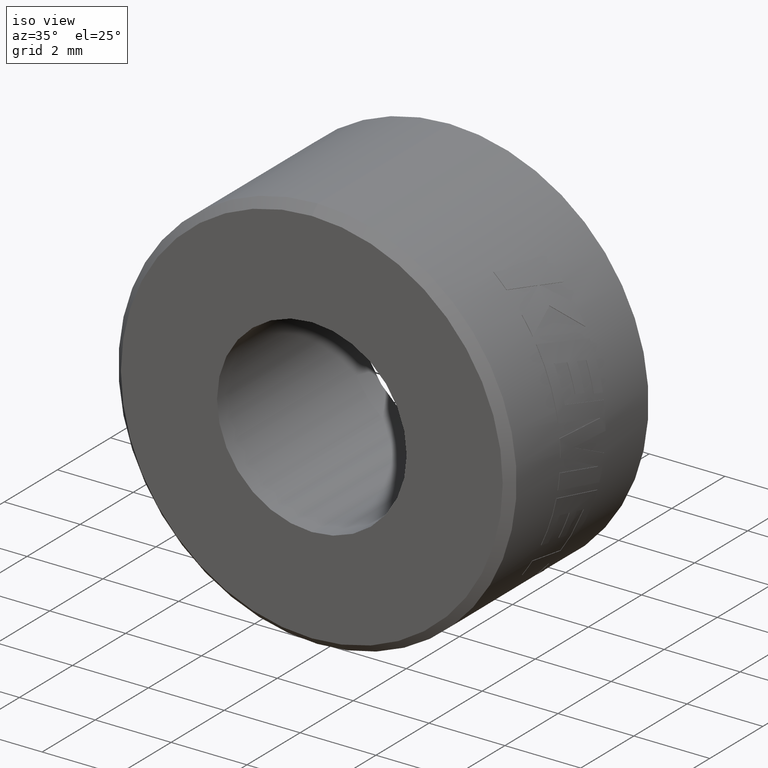
[diagram: clean part render]
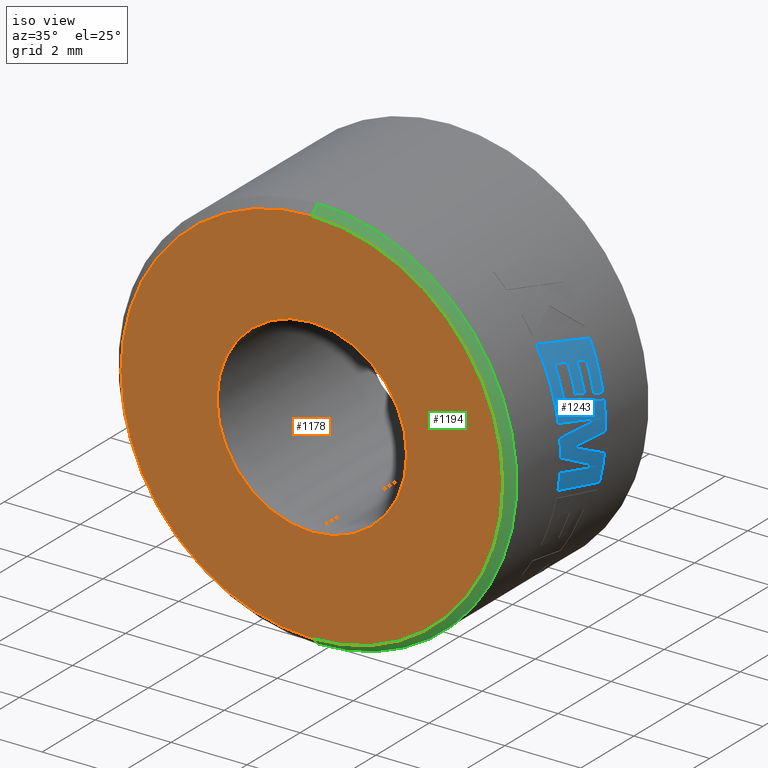
[diagram: same view with three faces highlighted in distinct colors, each labeled with its STEP entity id]
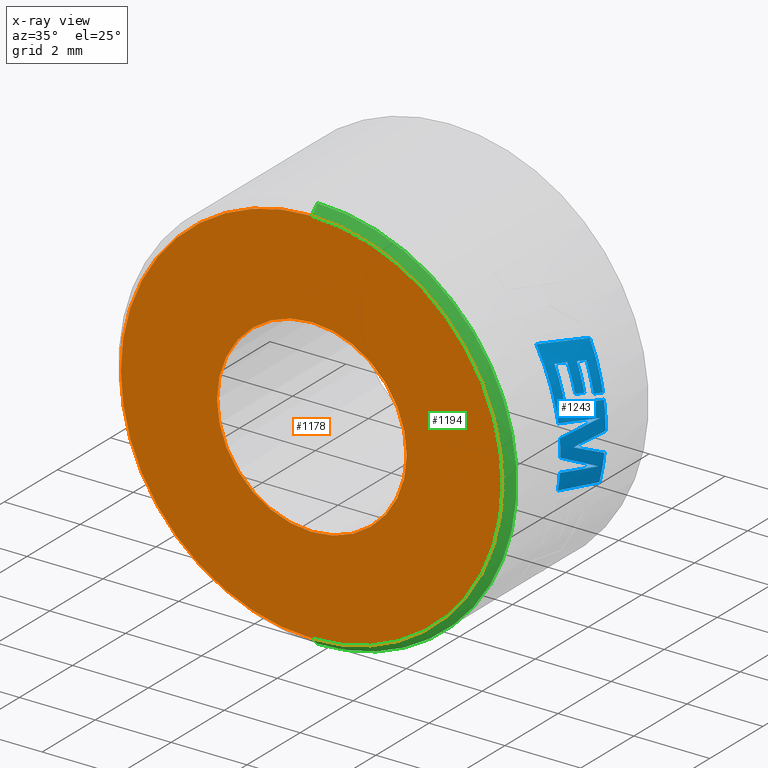
[diagram: x-ray of the same camera — body ghosted, the three highlighted faces saturated]
A machine part, iso view with three faces highlighted in distinct colors.
The next image is the same camera in x-ray (body ghosted, the three faces saturated) — at least one of them is partly hidden behind the body in this view.
Their STEP definitions:

[orange] entity #1178 — the highlighted planar face has unit normal (0, 1, 0).
#43 = VERTEX_POINT ( 'NONE', #820 ) ;
#164 = AXIS2_PLACEMENT_3D ( 'NONE', #2397, #2243, #1094 ) ;
#195 = CARTESIAN_POINT ( 'NONE',  ( 6.296950144195812582E-16, -2.700000000000000178, -5.033699999999991626 ) ) ;
#207 = EDGE_CURVE ( 'NONE', #781, #1289, #2261, .T. ) ;
#315 = AXIS2_PLACEMENT_3D ( 'NONE', #1111, #1700, #1286 ) ;
#324 = CARTESIAN_POINT ( 'NONE',  ( 0.000000000000000000, -2.700000000000000178, 0.000000000000000000 ) ) ;
#363 = EDGE_LOOP ( 'NONE', ( #743, #1209 ) ) ;
#653 = CARTESIAN_POINT ( 'NONE',  ( 0.000000000000000000, -2.700000000000000178, 0.000000000000000000 ) ) ;
#661 = VERTEX_POINT ( 'NONE', #2460 ) ;
#743 = ORIENTED_EDGE ( 'NONE', *, *, #919, .T. ) ;
#781 = VERTEX_POINT ( 'NONE', #1391 ) ;
#793 = CIRCLE ( 'NONE', #2035, 2.500000000000000000 ) ;
#820 = CARTESIAN_POINT ( 'NONE',  ( 0.000000000000000000, -2.700000000000000178, 2.500000000000000000 ) ) ;
#821 = FACE_BOUND ( 'NONE', #363, .T. ) ;
#865 = FACE_OUTER_BOUND ( 'NONE', #888, .T. ) ;
#888 = EDGE_LOOP ( 'NONE', ( #2458, #1399 ) ) ;
#919 = EDGE_CURVE ( 'NONE', #43, #661, #1978, .T. ) ;
#946 = DIRECTION ( 'NONE',  ( -0.000000000000000000, -1.000000000000000000, -0.000000000000000000 ) ) ;
#1094 = DIRECTION ( 'NONE',  ( 0.000000000000000000, 0.000000000000000000, 1.000000000000000000 ) ) ;
#1111 = CARTESIAN_POINT ( 'NONE',  ( 0.000000000000000000, -2.700000000000000178, 0.000000000000000000 ) ) ;
#1132 = DIRECTION ( 'NONE',  ( 0.000000000000000000, 0.000000000000000000, 1.000000000000000000 ) ) ;
#1152 = AXIS2_PLACEMENT_3D ( 'NONE', #1523, #946, #1132 ) ;
#1178 = ADVANCED_FACE ( 'NONE', ( #865, #821 ), #1401, .F. ) ;
#1189 = DIRECTION ( 'NONE',  ( 0.000000000000000000, 0.000000000000000000, 1.000000000000000000 ) ) ;
#1209 = ORIENTED_EDGE ( 'NONE', *, *, #1570, .T. ) ;
#1240 = CIRCLE ( 'NONE', #1152, 5.033699999999991626 ) ;
#1286 = DIRECTION ( 'NONE',  ( 0.000000000000000000, 0.000000000000000000, 1.000000000000000000 ) ) ;
#1289 = VERTEX_POINT ( 'NONE', #195 ) ;
#1335 = EDGE_CURVE ( 'NONE', #1289, #781, #1240, .T. ) ;
#1391 = CARTESIAN_POINT ( 'NONE',  ( 0.000000000000000000, -2.700000000000000178, 5.033699999999991626 ) ) ;
#1399 = ORIENTED_EDGE ( 'NONE', *, *, #1335, .T. ) ;
#1401 = PLANE ( 'NONE',  #1833 ) ;
#1481 = DIRECTION ( 'NONE',  ( 0.000000000000000000, 1.000000000000000000, 0.000000000000000000 ) ) ;
#1523 = CARTESIAN_POINT ( 'NONE',  ( 0.000000000000000000, -2.700000000000000178, 0.000000000000000000 ) ) ;
#1570 = EDGE_CURVE ( 'NONE', #661, #43, #793, .T. ) ;
#1700 = DIRECTION ( 'NONE',  ( 0.000000000000000000, 1.000000000000000000, 0.000000000000000000 ) ) ;
#1833 = AXIS2_PLACEMENT_3D ( 'NONE', #324, #1481, #2220 ) ;
#1978 = CIRCLE ( 'NONE', #315, 2.500000000000000000 ) ;
#2035 = AXIS2_PLACEMENT_3D ( 'NONE', #653, #2146, #1189 ) ;
#2146 = DIRECTION ( 'NONE',  ( 0.000000000000000000, 1.000000000000000000, 0.000000000000000000 ) ) ;
#2220 = DIRECTION ( 'NONE',  ( 0.000000000000000000, -0.000000000000000000, 1.000000000000000000 ) ) ;
#2243 = DIRECTION ( 'NONE',  ( -0.000000000000000000, -1.000000000000000000, -0.000000000000000000 ) ) ;
#2261 = CIRCLE ( 'NONE', #164, 5.033699999999991626 ) ;
#2397 = CARTESIAN_POINT ( 'NONE',  ( 0.000000000000000000, -2.700000000000000178, 0.000000000000000000 ) ) ;
#2458 = ORIENTED_EDGE ( 'NONE', *, *, #207, .T. ) ;
#2460 = CARTESIAN_POINT ( 'NONE',  ( 3.061616997868382648E-16, -2.700000000000000178, -2.500000000000000000 ) ) ;

[blue] entity #1243 — the highlighted cylindrical surface (partial cylindrical patch) has radius 5.26 mm, axis along (0, 1, 0).
#16 = B_SPLINE_CURVE_WITH_KNOTS ( 'NONE', 3,
 ( #1370, #2128, #1181, #1950 ),
 .UNSPECIFIED., .F., .F.,
 ( 4, 4 ),
 ( 0.000000000000000000, 1.000000000000000000 ),
 .UNSPECIFIED. ) ;
#25 = VERTEX_POINT ( 'NONE', #402 ) ;
#30 = B_SPLINE_CURVE_WITH_KNOTS ( 'NONE', 3,
 ( #670, #70, #1438, #871 ),
 .UNSPECIFIED., .F., .F.,
 ( 4, 4 ),
 ( 0.000000000000000000, 1.000000000000000000 ),
 .UNSPECIFIED. ) ;
#33 = DIRECTION ( 'NONE',  ( 0.000000000000000000, 1.000000000000000000, 0.000000000000000000 ) ) ;
#62 = EDGE_CURVE ( 'NONE', #1142, #304, #1568, .T. ) ;
#66 = EDGE_CURVE ( 'NONE', #1546, #1848, #1840, .T. ) ;
#70 = CARTESIAN_POINT ( 'NONE',  ( 5.168846142998578586, -0.2839695298731073070, -0.9885895622361751123 ) ) ;
#73 = CARTESIAN_POINT ( 'NONE',  ( 0.000000000000000000, -0.1045749714777438055, 0.000000000000000000 ) ) ;
#86 = DIRECTION ( 'NONE',  ( 0.000000000000000000, 0.000000000000000000, 1.000000000000000000 ) ) ;
#103 = ORIENTED_EDGE ( 'NONE', *, *, #2262, .T. ) ;
#129 = CARTESIAN_POINT ( 'NONE',  ( 5.128122207793435194, -0.1045749714777446798, 1.170454023845352909 ) ) ;
#136 = CARTESIAN_POINT ( 'NONE',  ( 4.978179115848135439, 0.5263146279889918677, 1.698626707235426414 ) ) ;
#156 = B_SPLINE_CURVE_WITH_KNOTS ( 'NONE', 3,
 ( #2101, #373, #551, #1119 ),
 .UNSPECIFIED., .F., .F.,
 ( 4, 4 ),
 ( 0.000000000000000000, 1.000000000000000000 ),
 .UNSPECIFIED. ) ;
#172 = EDGE_CURVE ( 'NONE', #1142, #2013, #1588, .T. ) ;
#208 = CARTESIAN_POINT ( 'NONE',  ( 4.916388550604661845, -0.1045749714777438055, 1.869952838839361808 ) ) ;
#212 = DIRECTION ( 'NONE',  ( 0.000000000000000000, 0.000000000000000000, 1.000000000000000000 ) ) ;
#217 = CARTESIAN_POINT ( 'NONE',  ( 4.625383235064487231, -0.8510120597978311219, 2.504681602276898289 ) ) ;
#223 = AXIS2_PLACEMENT_3D ( 'NONE', #2049, #1256, #290 ) ;
#239 = ORIENTED_EDGE ( 'NONE', *, *, #1366, .T. ) ;
#244 = EDGE_CURVE ( 'NONE', #1966, #1491, #945, .T. ) ;
#250 = CARTESIAN_POINT ( 'NONE',  ( 5.249096897691684305, 0.6634571195694937140, 0.3384992742141856858 ) ) ;
#258 = CARTESIAN_POINT ( 'NONE',  ( 0.000000000000000000, -0.5273715039358661816, 0.000000000000000000 ) ) ;
#267 = ORIENTED_EDGE ( 'NONE', *, *, #244, .T. ) ;
#272 = AXIS2_PLACEMENT_3D ( 'NONE', #556, #1714, #212 ) ;
#273 = VERTEX_POINT ( 'NONE', #2291 ) ;
#290 = DIRECTION ( 'NONE',  ( 0.000000000000000000, 0.000000000000000000, 1.000000000000000000 ) ) ;
#298 = B_SPLINE_CURVE_WITH_KNOTS ( 'NONE', 3,
 ( #685, #1406, #1421, #2136 ),
 .UNSPECIFIED., .F., .F.,
 ( 4, 4 ),
 ( 0.000000000000000000, 1.000000000000000000 ),
 .UNSPECIFIED. ) ;
#304 = VERTEX_POINT ( 'NONE', #1924 ) ;
#306 = CYLINDRICAL_SURFACE ( 'NONE', #1913, 5.259999999999999787 ) ;
#307 = EDGE_CURVE ( 'NONE', #304, #588, #156, .T. ) ;
#327 = CIRCLE ( 'NONE', #832, 5.259999999999999787 ) ;
#373 = CARTESIAN_POINT ( 'NONE',  ( 5.260037970248488293, 0.03991059201449915356, 0.008826259827437569344 ) ) ;
#400 = DIRECTION ( 'NONE',  ( 0.000000000000000000, 0.000000000000000000, 1.000000000000000000 ) ) ;
#402 = CARTESIAN_POINT ( 'NONE',  ( 4.838492606262263962, 0.8501155299763391016, 2.063150333627048028 ) ) ;
#431 = CIRCLE ( 'NONE', #1581, 5.259999999999999787 ) ;
#433 = DIRECTION ( 'NONE',  ( 0.000000000000000000, 1.000000000000000000, 0.000000000000000000 ) ) ;
#446 = DIRECTION ( 'NONE',  ( 0.000000000000000000, 0.000000000000000000, 1.000000000000000000 ) ) ;
#454 = VERTEX_POINT ( 'NONE', #2377 ) ;
#463 = EDGE_CURVE ( 'NONE', #1491, #1525, #1434, .T. ) ;
#464 = CARTESIAN_POINT ( 'NONE',  ( 5.244978028313505902, -0.8510120597978311219, -0.3972473820034079228 ) ) ;
#471 = VERTEX_POINT ( 'NONE', #1054 ) ;
#487 = CARTESIAN_POINT ( 'NONE',  ( 0.000000000000000000, -0.8510120597978311219, 0.000000000000000000 ) ) ;
#492 = CIRCLE ( 'NONE', #2428, 5.259999999999999787 ) ;
#493 = CARTESIAN_POINT ( 'NONE',  ( 5.233955987421861522, -0.3437579458105131103, -0.5427747408302763255 ) ) ;
#516 = ORIENTED_EDGE ( 'NONE', *, *, #1082, .T. ) ;
#518 = DIRECTION ( 'NONE',  ( 0.000000000000000000, 0.000000000000000000, 1.000000000000000000 ) ) ;
#525 = ORIENTED_EDGE ( 'NONE', *, *, #1452, .F. ) ;
#551 = CARTESIAN_POINT ( 'NONE',  ( 5.260029255140861615, 0.4450130609954194849, -0.01302253357255527162 ) ) ;
#555 = CARTESIAN_POINT ( 'NONE',  ( 5.203096163671014907, -0.8510120597978315660, 0.7716153909765909313 ) ) ;
#556 = CARTESIAN_POINT ( 'NONE',  ( 0.000000000000000000, 0.2099051652596621020, 0.000000000000000000 ) ) ;
#561 = CARTESIAN_POINT ( 'NONE',  ( 0.000000000000000000, 0.8501155299763391016, 0.000000000000000000 ) ) ;
#588 = VERTEX_POINT ( 'NONE', #1664 ) ;
#615 = CARTESIAN_POINT ( 'NONE',  ( 5.259911086689958992, -0.8510120597978315660, -0.03058365766299010052 ) ) ;
#624 = DIRECTION ( 'NONE',  ( 0.000000000000000000, 1.000000000000000000, 0.000000000000000000 ) ) ;
#627 = DIRECTION ( 'NONE',  ( 0.000000000000000000, 1.000000000000000000, 0.000000000000000000 ) ) ;
#641 = EDGE_CURVE ( 'NONE', #2286, #454, #1348, .T. ) ;
#658 = ORIENTED_EDGE ( 'NONE', *, *, #1936, .T. ) ;
#670 = CARTESIAN_POINT ( 'NONE',  ( 5.194535865394363405, -0.8510120597978315660, -0.8272829885423880203 ) ) ;
#685 = CARTESIAN_POINT ( 'NONE',  ( 5.173886018643873541, 0.5263146279889910906, 0.9478942272645407563 ) ) ;
#692 = CARTESIAN_POINT ( 'NONE',  ( 0.000000000000000000, -2.700000000000000178, 0.000000000000000000 ) ) ;
#724 = CARTESIAN_POINT ( 'NONE',  ( 5.203096163671014907, -0.8510120597978315660, 0.7716153909765909313 ) ) ;
#747 = CARTESIAN_POINT ( 'NONE',  ( 5.236224874283111674, 0.1634961681768059838, -0.5670356404159662134 ) ) ;
#754 = CIRCLE ( 'NONE', #2148, 5.259999999999999787 ) ;
#758 = CARTESIAN_POINT ( 'NONE',  ( 5.173886018643873541, 0.5263146279889910906, 0.9478942272645407563 ) ) ;
#768 = CARTESIAN_POINT ( 'NONE',  ( 4.774369102631394135, 0.2830730000516162859, 2.213532539493815676 ) ) ;
#785 = ORIENTED_EDGE ( 'NONE', *, *, #860, .T. ) ;
#799 = CARTESIAN_POINT ( 'NONE',  ( 5.250690238713263014, 0.4450130609954202066, -0.3719863102114197573 ) ) ;
#804 = ORIENTED_EDGE ( 'NONE', *, *, #1501, .T. ) ;
#809 = CARTESIAN_POINT ( 'NONE',  ( 5.261084463410955259, 0.03991059201449975030, -0.1706225857244925426 ) ) ;
#811 = B_SPLINE_CURVE_WITH_KNOTS ( 'NONE', 3,
 ( #1661, #1461, #1652, #136 ),
 .UNSPECIFIED., .F., .F.,
 ( 4, 4 ),
 ( 0.000000000000000000, 1.000000000000000000 ),
 .UNSPECIFIED. ) ;
#818 = CARTESIAN_POINT ( 'NONE',  ( 5.128122207793435194, -0.1045749714777446798, 1.170454023845352909 ) ) ;
#832 = AXIS2_PLACEMENT_3D ( 'NONE', #1403, #433, #446 ) ;
#860 = EDGE_CURVE ( 'NONE', #2286, #1440, #811, .T. ) ;
#871 = CARTESIAN_POINT ( 'NONE',  ( 5.095053593782743917, 0.8501155299763395456, -1.306915787830855713 ) ) ;
#876 = CARTESIAN_POINT ( 'NONE',  ( 5.141222592402709068, 0.1050784530138607342, 1.111903851328099657 ) ) ;
#898 = EDGE_LOOP ( 'NONE', ( #1538, #1444, #1799, #978, #804, #525, #2298, #658, #1736, #1454, #785, #1116, #1569, #2350, #239, #1331, #516, #940, #267, #1034, #2121, #2170, #953, #103 ) ) ;
#899 = CARTESIAN_POINT ( 'NONE',  ( 5.245219228910963594, -0.3461890000087230468, 0.3950683506820998891 ) ) ;
#911 = CARTESIAN_POINT ( 'NONE',  ( 4.902085905338918081, -0.2455071489637842830, 1.907556654276495678 ) ) ;
#940 = ORIENTED_EDGE ( 'NONE', *, *, #2379, .T. ) ;
#942 = B_SPLINE_CURVE_WITH_KNOTS ( 'NONE', 3,
 ( #1580, #2191, #493, #464 ),
 .UNSPECIFIED., .F., .F.,
 ( 4, 4 ),
 ( 0.000000000000000000, 1.000000000000000000 ),
 .UNSPECIFIED. ) ;
#945 = B_SPLINE_CURVE_WITH_KNOTS ( 'NONE', 3,
 ( #1862, #1445, #899, #2199 ),
 .UNSPECIFIED., .F., .F.,
 ( 4, 4 ),
 ( 0.000000000000000000, 1.000000000000000000 ),
 .UNSPECIFIED. ) ;
#953 = ORIENTED_EDGE ( 'NONE', *, *, #1639, .T. ) ;
#978 = ORIENTED_EDGE ( 'NONE', *, *, #1263, .F. ) ;
#983 = CARTESIAN_POINT ( 'NONE',  ( 5.242937553981602328, -0.8510120597978311219, 0.4233270662849287214 ) ) ;
#985 = DIRECTION ( 'NONE',  ( 0.000000000000000000, 1.000000000000000000, 0.000000000000000000 ) ) ;
#989 = CARTESIAN_POINT ( 'NONE',  ( 4.872190151140502579, -0.5273715039358661816, 1.982262124727574903 ) ) ;
#995 = VERTEX_POINT ( 'NONE', #989 ) ;
#1003 = CARTESIAN_POINT ( 'NONE',  ( 5.244978028313505902, -0.8510120597978311219, -0.3972473820034079228 ) ) ;
#1012 = CARTESIAN_POINT ( 'NONE',  ( 4.947626178112540352, 0.2099051652596621020, 1.785663798606974995 ) ) ;
#1034 = ORIENTED_EDGE ( 'NONE', *, *, #463, .T. ) ;
#1036 = CARTESIAN_POINT ( 'NONE',  ( 5.189695990365509992, 0.8501155299763399897, 0.8571204860369047163 ) ) ;
#1054 = CARTESIAN_POINT ( 'NONE',  ( 5.193790430444138018, 0.6707502821641226909, -0.8319500974378744029 ) ) ;
#1075 = CARTESIAN_POINT ( 'NONE',  ( 0.000000000000000000, 0.8501155299763395456, 0.000000000000000000 ) ) ;
#1082 = EDGE_CURVE ( 'NONE', #1848, #2198, #431, .T. ) ;
#1112 = CIRCLE ( 'NONE', #2230, 5.259999999999999787 ) ;
#1116 = ORIENTED_EDGE ( 'NONE', *, *, #1495, .T. ) ;
#1118 = VERTEX_POINT ( 'NONE', #1036 ) ;
#1119 = CARTESIAN_POINT ( 'NONE',  ( 5.259884414461277302, 0.8501155299763404338, -0.03487042453631018085 ) ) ;
#1142 = VERTEX_POINT ( 'NONE', #2156 ) ;
#1144 = CARTESIAN_POINT ( 'NONE',  ( 4.703229699861565472, -0.2839695298731074180, 2.360922917398901255 ) ) ;
#1161 = CARTESIAN_POINT ( 'NONE',  ( 5.193790430444138018, 0.6707502821641226909, -0.8319500974378744029 ) ) ;
#1181 = CARTESIAN_POINT ( 'NONE',  ( 5.175096592383030547, -0.06820915929846331494, 0.9505053924196624759 ) ) ;
#1187 = AXIS2_PLACEMENT_3D ( 'NONE', #1829, #1753, #2205 ) ;
#1199 = CARTESIAN_POINT ( 'NONE',  ( 5.259910559107541239, -0.3651918769664217468, 0.03067425938775770328 ) ) ;
#1222 = DIRECTION ( 'NONE',  ( 0.000000000000000000, 0.000000000000000000, 1.000000000000000000 ) ) ;
#1243 = ADVANCED_FACE ( 'NONE', ( #1259 ), #306, .T. ) ;
#1256 = DIRECTION ( 'NONE',  ( 0.000000000000000000, 1.000000000000000000, 0.000000000000000000 ) ) ;
#1259 = FACE_OUTER_BOUND ( 'NONE', #898, .T. ) ;
#1263 = EDGE_CURVE ( 'NONE', #273, #588, #754, .T. ) ;
#1280 = DIRECTION ( 'NONE',  ( 0.000000000000000000, 1.000000000000000000, 0.000000000000000000 ) ) ;
#1308 = CARTESIAN_POINT ( 'NONE',  ( 5.239751129289286879, 0.1586340597803861108, 0.4834237915309534950 ) ) ;
#1331 = ORIENTED_EDGE ( 'NONE', *, *, #66, .T. ) ;
#1336 = VERTEX_POINT ( 'NONE', #758 ) ;
#1348 = CIRCLE ( 'NONE', #272, 5.259999999999999787 ) ;
#1349 = CARTESIAN_POINT ( 'NONE',  ( 5.259911086689958992, -0.8510120597978315660, -0.03058365766299010052 ) ) ;
#1366 = EDGE_CURVE ( 'NONE', #25, #1546, #2321, .T. ) ;
#1370 = CARTESIAN_POINT ( 'NONE',  ( 5.214682642820668512, 0.8501155299763391016, 0.6889738272712817579 ) ) ;
#1373 = VERTEX_POINT ( 'NONE', #208 ) ;
#1403 = CARTESIAN_POINT ( 'NONE',  ( 0.000000000000000000, -0.8510120597978311219, 0.000000000000000000 ) ) ;
#1406 = CARTESIAN_POINT ( 'NONE',  ( 5.179420894193912162, 0.6342482619847743530, 0.9176832454908500081 ) ) ;
#1421 = CARTESIAN_POINT ( 'NONE',  ( 5.184691154292931259, 0.7421818959805570604, 0.8874237842562618939 ) ) ;
#1432 = B_SPLINE_CURVE_WITH_KNOTS ( 'NONE', 3,
 ( #129, #1808, #876, #1849 ),
 .UNSPECIFIED., .F., .F.,
 ( 4, 4 ),
 ( 0.000000000000000000, 1.000000000000000000 ),
 .UNSPECIFIED. ) ;
#1434 = CIRCLE ( 'NONE', #1187, 5.259999999999999787 ) ;
#1438 = CARTESIAN_POINT ( 'NONE',  ( 5.135637413647332394, 0.2830730000516166189, -1.148698449593859028 ) ) ;
#1440 = VERTEX_POINT ( 'NONE', #2324 ) ;
#1444 = ORIENTED_EDGE ( 'NONE', *, *, #62, .T. ) ;
#1445 = CARTESIAN_POINT ( 'NONE',  ( 5.247272432947769794, 0.1586340597803858887, 0.3667911878363319667 ) ) ;
#1452 = EDGE_CURVE ( 'NONE', #995, #1817, #2106, .T. ) ;
#1454 = ORIENTED_EDGE ( 'NONE', *, *, #641, .F. ) ;
#1461 = CARTESIAN_POINT ( 'NONE',  ( 4.958064625863836561, 0.3153749861694392642, 1.756741479974844644 ) ) ;
#1491 = VERTEX_POINT ( 'NONE', #983 ) ;
#1495 = EDGE_CURVE ( 'NONE', #1440, #1336, #1112, .T. ) ;
#1496 = CARTESIAN_POINT ( 'NONE',  ( 5.224400016556765003, -0.3461890000087226027, 0.6279609272145774135 ) ) ;
#1501 = EDGE_CURVE ( 'NONE', #273, #1817, #16, .T. ) ;
#1518 = AXIS2_PLACEMENT_3D ( 'NONE', #258, #624, #1807 ) ;
#1525 = VERTEX_POINT ( 'NONE', #615 ) ;
#1538 = ORIENTED_EDGE ( 'NONE', *, *, #172, .F. ) ;
#1546 = VERTEX_POINT ( 'NONE', #2195 ) ;
#1568 = B_SPLINE_CURVE_WITH_KNOTS ( 'NONE', 3,
 ( #2131, #799, #809, #1199 ),
 .UNSPECIFIED., .F., .F.,
 ( 4, 4 ),
 ( 0.000000000000000000, 1.000000000000000000 ),
 .UNSPECIFIED. ) ;
#1569 = ORIENTED_EDGE ( 'NONE', *, *, #2333, .T. ) ;
#1580 = CARTESIAN_POINT ( 'NONE',  ( 5.193790430444138018, 0.6707502821641226909, -0.8319500974378744029 ) ) ;
#1581 = AXIS2_PLACEMENT_3D ( 'NONE', #1759, #2317, #2272 ) ;
#1588 = CIRCLE ( 'NONE', #1981, 5.259999999999999787 ) ;
#1626 = CIRCLE ( 'NONE', #223, 5.259999999999999787 ) ;
#1639 = EDGE_CURVE ( 'NONE', #2252, #2284, #327, .T. ) ;
#1652 = CARTESIAN_POINT ( 'NONE',  ( 4.968249460475010260, 0.4208448070792156215, 1.727727629053916303 ) ) ;
#1653 = CARTESIAN_POINT ( 'NONE',  ( 4.887351812656677730, -0.3864393264498247604, 1.944996368099051631 ) ) ;
#1661 = CARTESIAN_POINT ( 'NONE',  ( 4.947626178112540352, 0.2099051652596621020, 1.785663798606974995 ) ) ;
#1664 = CARTESIAN_POINT ( 'NONE',  ( 5.259884414461277302, 0.8501155299763404338, -0.03487042453631018085 ) ) ;
#1666 = CARTESIAN_POINT ( 'NONE',  ( 5.095053593782743917, 0.8501155299763395456, -1.306915787830855713 ) ) ;
#1714 = DIRECTION ( 'NONE',  ( 0.000000000000000000, 1.000000000000000000, 0.000000000000000000 ) ) ;
#1720 = CARTESIAN_POINT ( 'NONE',  ( 5.258351136751270083, -0.3437579458105126662, -0.2988706646523785482 ) ) ;
#1736 = ORIENTED_EDGE ( 'NONE', *, *, #2018, .T. ) ;
#1753 = DIRECTION ( 'NONE',  ( 0.000000000000000000, 1.000000000000000000, 0.000000000000000000 ) ) ;
#1759 = CARTESIAN_POINT ( 'NONE',  ( 0.000000000000000000, -0.8510120597978311219, 0.000000000000000000 ) ) ;
#1799 = ORIENTED_EDGE ( 'NONE', *, *, #307, .T. ) ;
#1807 = DIRECTION ( 'NONE',  ( 0.000000000000000000, 0.000000000000000000, 1.000000000000000000 ) ) ;
#1808 = CARTESIAN_POINT ( 'NONE',  ( 5.134797501531005004, 0.0002517407680584335568, 1.141207490994182283 ) ) ;
#1810 = DIRECTION ( 'NONE',  ( 0.000000000000000000, 0.000000000000000000, 1.000000000000000000 ) ) ;
#1815 = CARTESIAN_POINT ( 'NONE',  ( 4.872190151140502579, -0.5273715039358661816, 1.982262124727574903 ) ) ;
#1817 = VERTEX_POINT ( 'NONE', #2104 ) ;
#1819 = EDGE_CURVE ( 'NONE', #1525, #471, #2211, .T. ) ;
#1829 = CARTESIAN_POINT ( 'NONE',  ( 0.000000000000000000, -0.8510120597978311219, 0.000000000000000000 ) ) ;
#1840 = CIRCLE ( 'NONE', #2299, 5.259999999999999787 ) ;
#1841 = VERTEX_POINT ( 'NONE', #818 ) ;
#1848 = VERTEX_POINT ( 'NONE', #1968 ) ;
#1849 = CARTESIAN_POINT ( 'NONE',  ( 5.147396540025560796, 0.2099051652596629625, 1.082547393758294119 ) ) ;
#1851 = DIRECTION ( 'NONE',  ( 0.000000000000000000, 0.000000000000000000, 1.000000000000000000 ) ) ;
#1862 = CARTESIAN_POINT ( 'NONE',  ( 5.249096897691684305, 0.6634571195694937140, 0.3384992742141856858 ) ) ;
#1885 = CARTESIAN_POINT ( 'NONE',  ( 4.916388550604661845, -0.1045749714777438055, 1.869952838839361808 ) ) ;
#1913 = AXIS2_PLACEMENT_3D ( 'NONE', #692, #2210, #518 ) ;
#1924 = CARTESIAN_POINT ( 'NONE',  ( 5.259910559107541239, -0.3651918769664217468, 0.03067425938775770328 ) ) ;
#1935 = CARTESIAN_POINT ( 'NONE',  ( 4.838492606262263962, 0.8501155299763391016, 2.063150333627048028 ) ) ;
#1936 = EDGE_CURVE ( 'NONE', #1373, #1841, #492, .T. ) ;
#1950 = CARTESIAN_POINT ( 'NONE',  ( 5.147948346609021009, -0.5273715039358652934, 1.079920284393917296 ) ) ;
#1965 = CARTESIAN_POINT ( 'NONE',  ( 5.194535865394363405, -0.8510120597978315660, -0.8272829885423880203 ) ) ;
#1966 = VERTEX_POINT ( 'NONE', #250 ) ;
#1968 = CARTESIAN_POINT ( 'NONE',  ( 5.149966139928914721, -0.8510120597978311219, 1.070256398058745617 ) ) ;
#1981 = AXIS2_PLACEMENT_3D ( 'NONE', #1075, #1280, #1851 ) ;
#2013 = VERTEX_POINT ( 'NONE', #1666 ) ;
#2018 = EDGE_CURVE ( 'NONE', #1841, #454, #1432, .T. ) ;
#2048 = EDGE_CURVE ( 'NONE', #25, #1118, #1626, .T. ) ;
#2049 = CARTESIAN_POINT ( 'NONE',  ( 0.000000000000000000, 0.8501155299763391016, 0.000000000000000000 ) ) ;
#2101 = CARTESIAN_POINT ( 'NONE',  ( 5.259910559107541239, -0.3651918769664217468, 0.03067425938775770328 ) ) ;
#2104 = CARTESIAN_POINT ( 'NONE',  ( 5.147948346609021009, -0.5273715039358652934, 1.079920284393917296 ) ) ;
#2106 = CIRCLE ( 'NONE', #1518, 5.259999999999999787 ) ;
#2121 = ORIENTED_EDGE ( 'NONE', *, *, #1819, .T. ) ;
#2128 = CARTESIAN_POINT ( 'NONE',  ( 5.197362447001660613, 0.3909531853389384692, 0.8200663607356455387 ) ) ;
#2131 = CARTESIAN_POINT ( 'NONE',  ( 5.228796254766000295, 0.8501155299763395456, -0.5720924104941842447 ) ) ;
#2136 = CARTESIAN_POINT ( 'NONE',  ( 5.189695990365509992, 0.8501155299763399897, 0.8571204860369047163 ) ) ;
#2140 = CARTESIAN_POINT ( 'NONE',  ( 0.000000000000000000, 0.5263146279889918677, 0.000000000000000000 ) ) ;
#2148 = AXIS2_PLACEMENT_3D ( 'NONE', #561, #33, #400 ) ;
#2156 = CARTESIAN_POINT ( 'NONE',  ( 5.228796254766000295, 0.8501155299763395456, -0.5720924104941842447 ) ) ;
#2170 = ORIENTED_EDGE ( 'NONE', *, *, #2289, .T. ) ;
#2179 = DIRECTION ( 'NONE',  ( 0.000000000000000000, 1.000000000000000000, 0.000000000000000000 ) ) ;
#2191 = CARTESIAN_POINT ( 'NONE',  ( 5.216873749325993792, 0.1634961681768053454, -0.6878429916382664544 ) ) ;
#2195 = CARTESIAN_POINT ( 'NONE',  ( 4.625383235064487231, -0.8510120597978311219, 2.504681602276898289 ) ) ;
#2198 = VERTEX_POINT ( 'NONE', #724 ) ;
#2199 = CARTESIAN_POINT ( 'NONE',  ( 5.242937553981602328, -0.8510120597978311219, 0.4233270662849287214 ) ) ;
#2205 = DIRECTION ( 'NONE',  ( 0.000000000000000000, 0.000000000000000000, 1.000000000000000000 ) ) ;
#2210 = DIRECTION ( 'NONE',  ( 0.000000000000000000, 1.000000000000000000, 0.000000000000000000 ) ) ;
#2211 = B_SPLINE_CURVE_WITH_KNOTS ( 'NONE', 3,
 ( #1349, #1720, #747, #1161 ),
 .UNSPECIFIED., .F., .F.,
 ( 4, 4 ),
 ( 0.000000000000000000, 1.000000000000000000 ),
 .UNSPECIFIED. ) ;
#2229 = B_SPLINE_CURVE_WITH_KNOTS ( 'NONE', 3,
 ( #555, #1496, #1308, #2448 ),
 .UNSPECIFIED., .F., .F.,
 ( 4, 4 ),
 ( 0.000000000000000000, 1.000000000000000000 ),
 .UNSPECIFIED. ) ;
#2230 = AXIS2_PLACEMENT_3D ( 'NONE', #2140, #2179, #1222 ) ;
#2252 = VERTEX_POINT ( 'NONE', #1003 ) ;
#2262 = EDGE_CURVE ( 'NONE', #2284, #2013, #30, .T. ) ;
#2272 = DIRECTION ( 'NONE',  ( 0.000000000000000000, 0.000000000000000000, 1.000000000000000000 ) ) ;
#2284 = VERTEX_POINT ( 'NONE', #1965 ) ;
#2286 = VERTEX_POINT ( 'NONE', #1012 ) ;
#2289 = EDGE_CURVE ( 'NONE', #471, #2252, #942, .T. ) ;
#2291 = CARTESIAN_POINT ( 'NONE',  ( 5.214682642820668512, 0.8501155299763391016, 0.6889738272712817579 ) ) ;
#2298 = ORIENTED_EDGE ( 'NONE', *, *, #2365, .T. ) ;
#2299 = AXIS2_PLACEMENT_3D ( 'NONE', #487, #627, #1810 ) ;
#2317 = DIRECTION ( 'NONE',  ( 0.000000000000000000, 1.000000000000000000, 0.000000000000000000 ) ) ;
#2321 = B_SPLINE_CURVE_WITH_KNOTS ( 'NONE', 3,
 ( #1935, #768, #1144, #217 ),
 .UNSPECIFIED., .F., .F.,
 ( 4, 4 ),
 ( 0.000000000000000000, 1.000000000000000000 ),
 .UNSPECIFIED. ) ;
#2324 = CARTESIAN_POINT ( 'NONE',  ( 4.978179115848135439, 0.5263146279889918677, 1.698626707235426414 ) ) ;
#2333 = EDGE_CURVE ( 'NONE', #1336, #1118, #298, .T. ) ;
#2350 = ORIENTED_EDGE ( 'NONE', *, *, #2048, .F. ) ;
#2365 = EDGE_CURVE ( 'NONE', #995, #1373, #2462, .T. ) ;
#2377 = CARTESIAN_POINT ( 'NONE',  ( 5.147396540025560796, 0.2099051652596629625, 1.082547393758294119 ) ) ;
#2379 = EDGE_CURVE ( 'NONE', #2198, #1966, #2229, .T. ) ;
#2428 = AXIS2_PLACEMENT_3D ( 'NONE', #73, #985, #86 ) ;
#2448 = CARTESIAN_POINT ( 'NONE',  ( 5.249096897691684305, 0.6634571195694937140, 0.3384992742141856858 ) ) ;
#2462 = B_SPLINE_CURVE_WITH_KNOTS ( 'NONE', 3,
 ( #1815, #1653, #911, #1885 ),
 .UNSPECIFIED., .F., .F.,
 ( 4, 4 ),
 ( 0.000000000000000000, 1.000000000000000000 ),
 .UNSPECIFIED. ) ;

[green] entity #1194 — the highlighted conical surface has half-angle 45 deg.
#69 = ORIENTED_EDGE ( 'NONE', *, *, #1335, .F. ) ;
#154 = ORIENTED_EDGE ( 'NONE', *, *, #570, .F. ) ;
#182 = CARTESIAN_POINT ( 'NONE',  ( 6.429395695523604153E-16, -2.483699999999993135, -5.250000000000000000 ) ) ;
#189 = CARTESIAN_POINT ( 'NONE',  ( 0.000000000000000000, -2.483699999999993135, 0.000000000000000000 ) ) ;
#195 = CARTESIAN_POINT ( 'NONE',  ( 6.296950144195812582E-16, -2.700000000000000178, -5.033699999999991626 ) ) ;
#396 = AXIS2_PLACEMENT_3D ( 'NONE', #1468, #716, #1096 ) ;
#406 = VERTEX_POINT ( 'NONE', #465 ) ;
#465 = CARTESIAN_POINT ( 'NONE',  ( 0.000000000000000000, -2.483699999999993135, 5.250000000000000000 ) ) ;
#512 = EDGE_CURVE ( 'NONE', #1289, #590, #1845, .T. ) ;
#570 = EDGE_CURVE ( 'NONE', #406, #590, #1907, .T. ) ;
#590 = VERTEX_POINT ( 'NONE', #2034 ) ;
#704 = FACE_OUTER_BOUND ( 'NONE', #1166, .T. ) ;
#716 = DIRECTION ( 'NONE',  ( -0.000000000000000000, 1.000000000000000000, -0.000000000000000000 ) ) ;
#781 = VERTEX_POINT ( 'NONE', #1391 ) ;
#828 = AXIS2_PLACEMENT_3D ( 'NONE', #189, #1297, #1473 ) ;
#946 = DIRECTION ( 'NONE',  ( -0.000000000000000000, -1.000000000000000000, -0.000000000000000000 ) ) ;
#1096 = DIRECTION ( 'NONE',  ( 0.000000000000000000, 0.000000000000000000, 1.000000000000000000 ) ) ;
#1132 = DIRECTION ( 'NONE',  ( 0.000000000000000000, 0.000000000000000000, 1.000000000000000000 ) ) ;
#1152 = AXIS2_PLACEMENT_3D ( 'NONE', #1523, #946, #1132 ) ;
#1166 = EDGE_LOOP ( 'NONE', ( #69, #1324, #154, #1798 ) ) ;
#1194 = ADVANCED_FACE ( 'NONE', ( #704 ), #1881, .T. ) ;
#1218 = CARTESIAN_POINT ( 'NONE',  ( 0.000000000000000000, -2.483699999999993135, 5.250000000000000000 ) ) ;
#1240 = CIRCLE ( 'NONE', #1152, 5.033699999999991626 ) ;
#1276 = VECTOR ( 'NONE', #1875, 1000.000000000000114 ) ;
#1289 = VERTEX_POINT ( 'NONE', #195 ) ;
#1297 = DIRECTION ( 'NONE',  ( -0.000000000000000000, 1.000000000000000000, -0.000000000000000000 ) ) ;
#1324 = ORIENTED_EDGE ( 'NONE', *, *, #512, .T. ) ;
#1335 = EDGE_CURVE ( 'NONE', #1289, #781, #1240, .T. ) ;
#1391 = CARTESIAN_POINT ( 'NONE',  ( 0.000000000000000000, -2.700000000000000178, 5.033699999999991626 ) ) ;
#1468 = CARTESIAN_POINT ( 'NONE',  ( 0.000000000000000000, -2.483699999999993135, 0.000000000000000000 ) ) ;
#1473 = DIRECTION ( 'NONE',  ( 0.000000000000000000, 0.000000000000000000, 1.000000000000000000 ) ) ;
#1523 = CARTESIAN_POINT ( 'NONE',  ( 0.000000000000000000, -2.700000000000000178, 0.000000000000000000 ) ) ;
#1798 = ORIENTED_EDGE ( 'NONE', *, *, #2296, .F. ) ;
#1828 = LINE ( 'NONE', #1218, #2371 ) ;
#1845 = LINE ( 'NONE', #182, #1276 ) ;
#1875 = DIRECTION ( 'NONE',  ( 8.659560562354967371E-17, 0.7071067811865445751, -0.7071067811865503483 ) ) ;
#1881 = CONICAL_SURFACE ( 'NONE', #396, 5.250000000000000000, 0.7853981633974522758 ) ;
#1907 = CIRCLE ( 'NONE', #828, 5.250000000000000000 ) ;
#2034 = CARTESIAN_POINT ( 'NONE',  ( 6.429395695523603167E-16, -2.483699999999993135, -5.250000000000000000 ) ) ;
#2296 = EDGE_CURVE ( 'NONE', #781, #406, #1828, .T. ) ;
#2371 = VECTOR ( 'NONE', #2376, 1000.000000000000114 ) ;
#2376 = DIRECTION ( 'NONE',  ( 0.000000000000000000, 0.7071067811865445751, 0.7071067811865503483 ) ) ;